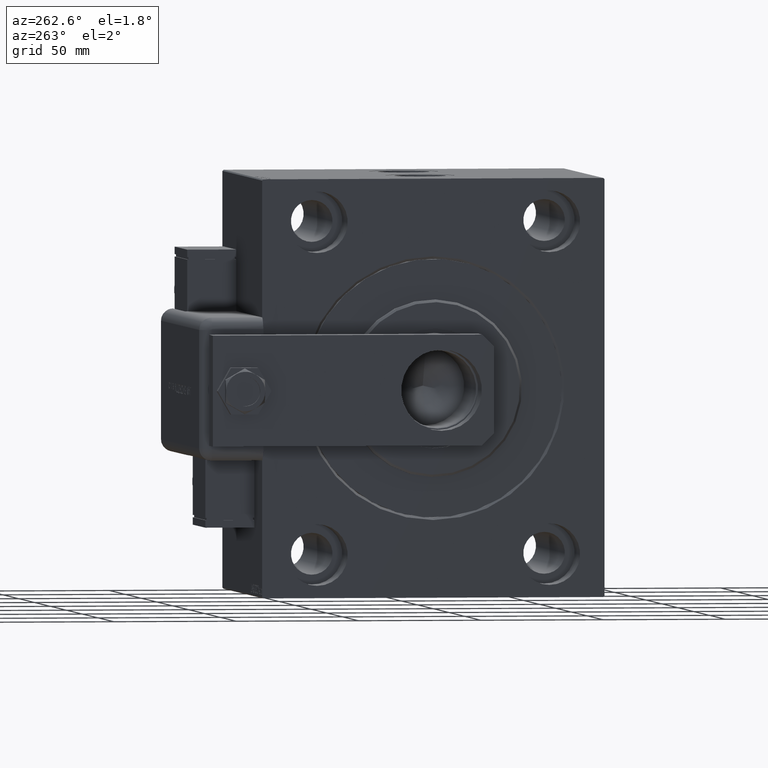
[diagram: clean part render]
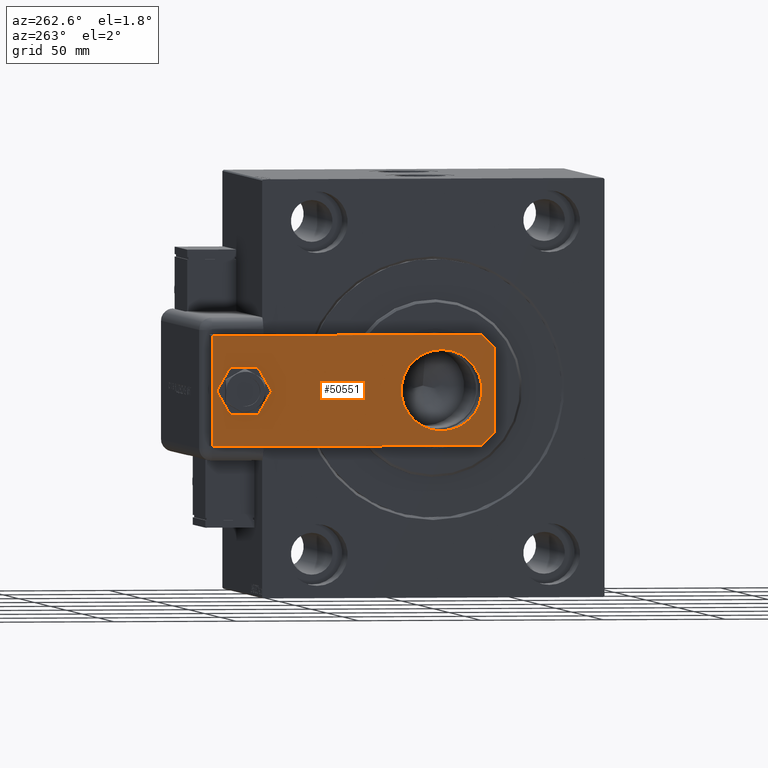
[diagram: same view with one face highlighted and labeled with its STEP entity id]
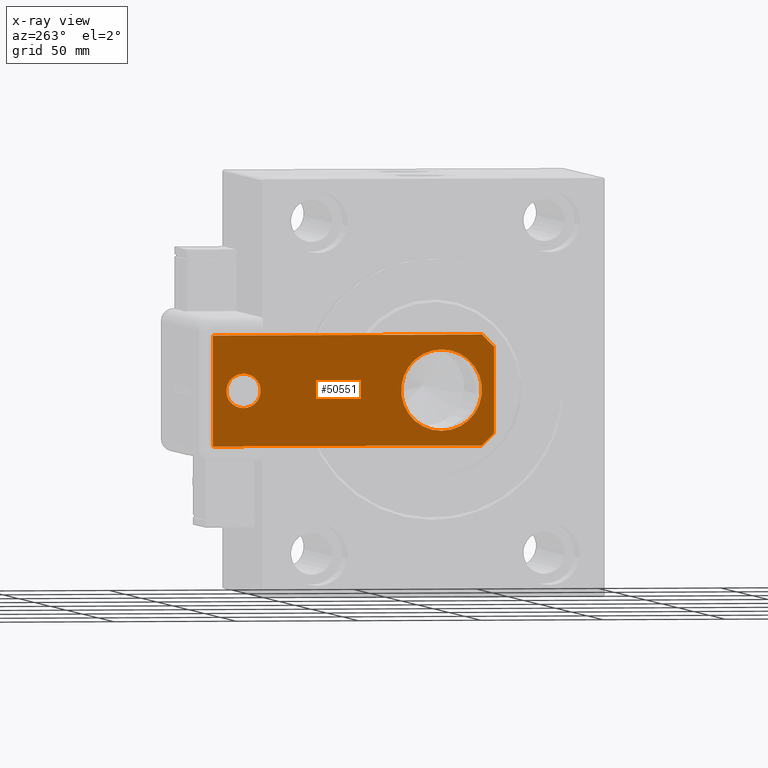
[diagram: x-ray of the same camera — body ghosted, the highlighted face saturated]
A machine part, auxiliary view. The second image highlights one B-rep face of the part: STEP entity #50551.
The next image is the same camera in x-ray: the body ghosted, the highlighted face saturated — about 0% of this face is hidden behind the body in this view.
In plain terms, the highlighted planar face has unit normal (1, 0, -0).
Its self-contained STEP definition (entity closure, byte-faithful):
#859 = ORIENTED_EDGE ( 'NONE', *, *, #31817, .T. ) ;
#1249 = ORIENTED_EDGE ( 'NONE', *, *, #27584, .T. ) ;
#2743 = CARTESIAN_POINT ( 'NONE',  ( -17.50000000000000355, 0.000000000000000000, 0.000000000000000000 ) ) ;
#3403 = PLANE ( 'NONE',  #57188 ) ;
#3521 = EDGE_CURVE ( 'NONE', #38051, #4966, #33378, .T. ) ;
#3690 = CARTESIAN_POINT ( 'NONE',  ( 0.000000000000000000, 0.000000000000000000, 0.000000000000000000 ) ) ;
#4018 = DIRECTION ( 'NONE',  ( 0.000000000000000000, 0.000000000000000000, 1.000000000000000000 ) ) ;
#4966 = VERTEX_POINT ( 'NONE', #41723 ) ;
#5538 = LINE ( 'NONE', #39070, #42897 ) ;
#7255 = DIRECTION ( 'NONE',  ( 0.000000000000000000, 0.000000000000000000, 1.000000000000000000 ) ) ;
#7484 = CIRCLE ( 'NONE', #56735, 16.50000000000000000 ) ;
#9694 = DIRECTION ( 'NONE',  ( -9.050731179009427836E-17, 1.000000000000000000, 0.000000000000000000 ) ) ;
#11014 = DIRECTION ( 'NONE',  ( -0.7071067811865493491, -0.7071067811865455743, -0.000000000000000000 ) ) ;
#11353 = DIRECTION ( 'NONE',  ( 1.000000000000000000, 0.000000000000000000, 0.000000000000000000 ) ) ;
#11897 = AXIS2_PLACEMENT_3D ( 'NONE', #43694, #53354, #11353 ) ;
#11935 = CARTESIAN_POINT ( 'NONE',  ( 1.963948872468190046E-17, 102.5000000000000142, 0.000000000000000000 ) ) ;
#13637 = EDGE_CURVE ( 'NONE', #19633, #4966, #39111, .T. ) ;
#14400 = CARTESIAN_POINT ( 'NONE',  ( 22.50000000000000000, 115.0000000000000000, 0.000000000000000000 ) ) ;
#14606 = CARTESIAN_POINT ( 'NONE',  ( -22.50000000000000355, 115.0000000000000000, 0.000000000000000000 ) ) ;
#15917 = VERTEX_POINT ( 'NONE', #43427 ) ;
#15988 = ORIENTED_EDGE ( 'NONE', *, *, #34315, .T. ) ;
#16541 = VERTEX_POINT ( 'NONE', #32700 ) ;
#16637 = ORIENTED_EDGE ( 'NONE', *, *, #50910, .F. ) ;
#17232 = ORIENTED_EDGE ( 'NONE', *, *, #56568, .F. ) ;
#17353 = CARTESIAN_POINT ( 'NONE',  ( 0.000000000000000000, 21.50000000000000355, 0.000000000000000000 ) ) ;
#18055 = ORIENTED_EDGE ( 'NONE', *, *, #3521, .T. ) ;
#19342 = CARTESIAN_POINT ( 'NONE',  ( -16.50000000000000000, 21.50000000000000355, 0.000000000000000000 ) ) ;
#19633 = VERTEX_POINT ( 'NONE', #2743 ) ;
#19752 = DIRECTION ( 'NONE',  ( -6.033820786006285224E-17, -1.000000000000000000, 0.000000000000000000 ) ) ;
#20311 = DIRECTION ( 'NONE',  ( -1.000000000000000000, 0.000000000000000000, 0.000000000000000000 ) ) ;
#21942 = AXIS2_PLACEMENT_3D ( 'NONE', #17353, #4018, #22473 ) ;
#22473 = DIRECTION ( 'NONE',  ( 1.000000000000000000, 0.000000000000000000, 0.000000000000000000 ) ) ;
#24458 = VECTOR ( 'NONE', #35151, 1000.000000000000000 ) ;
#25556 = CIRCLE ( 'NONE', #11897, 7.000000000000000000 ) ;
#25701 = DIRECTION ( 'NONE',  ( 1.000000000000000000, 0.000000000000000000, 0.000000000000000000 ) ) ;
#25802 = FACE_OUTER_BOUND ( 'NONE', #56372, .T. ) ;
#25844 = DIRECTION ( 'NONE',  ( 0.000000000000000000, 0.000000000000000000, 1.000000000000000000 ) ) ;
#26673 = ORIENTED_EDGE ( 'NONE', *, *, #13637, .F. ) ;
#26982 = FACE_BOUND ( 'NONE', #34683, .T. ) ;
#27584 = EDGE_CURVE ( 'NONE', #42028, #51134, #48033, .T. ) ;
#30026 = CARTESIAN_POINT ( 'NONE',  ( -22.50000000000001066, 0.000000000000000000, 0.000000000000000000 ) ) ;
#30768 = CARTESIAN_POINT ( 'NONE',  ( 7.000000000000000000, 102.5000000000000142, 0.000000000000000000 ) ) ;
#31042 = LINE ( 'NONE', #32230, #34767 ) ;
#31501 = DIRECTION ( 'NONE',  ( -0.000000000000000000, 0.000000000000000000, 1.000000000000000000 ) ) ;
#31774 = ORIENTED_EDGE ( 'NONE', *, *, #42653, .F. ) ;
#31817 = EDGE_CURVE ( 'NONE', #51134, #42028, #7484, .T. ) ;
#32006 = VERTEX_POINT ( 'NONE', #30768 ) ;
#32078 = VECTOR ( 'NONE', #20311, 1000.000000000000000 ) ;
#32230 = CARTESIAN_POINT ( 'NONE',  ( -17.50000000000000355, 0.000000000000000000, 0.000000000000000000 ) ) ;
#32700 = CARTESIAN_POINT ( 'NONE',  ( -7.000000000000000000, 102.5000000000000142, 0.000000000000000000 ) ) ;
#33378 = LINE ( 'NONE', #42447, #45646 ) ;
#33558 = LINE ( 'NONE', #51113, #35632 ) ;
#34315 = EDGE_CURVE ( 'NONE', #16541, #32006, #34612, .T. ) ;
#34612 = CIRCLE ( 'NONE', #42345, 7.000000000000000000 ) ;
#34683 = EDGE_LOOP ( 'NONE', ( #15988, #43782 ) ) ;
#34767 = VECTOR ( 'NONE', #55229, 1000.000000000000114 ) ;
#35151 = DIRECTION ( 'NONE',  ( 1.000000000000000000, 0.000000000000000000, 0.000000000000000000 ) ) ;
#35632 = VECTOR ( 'NONE', #9694, 1000.000000000000000 ) ;
#38051 = VERTEX_POINT ( 'NONE', #55724 ) ;
#39070 = CARTESIAN_POINT ( 'NONE',  ( -22.50000000000000355, 115.0000000000000000, 0.000000000000000000 ) ) ;
#39111 = LINE ( 'NONE', #30026, #24458 ) ;
#39298 = CARTESIAN_POINT ( 'NONE',  ( 0.000000000000000000, 21.50000000000000355, 0.000000000000000000 ) ) ;
#39674 = CARTESIAN_POINT ( 'NONE',  ( 16.50000000000000000, 21.50000000000000711, 0.000000000000000000 ) ) ;
#41518 = EDGE_CURVE ( 'NONE', #19633, #15917, #31042, .T. ) ;
#41723 = CARTESIAN_POINT ( 'NONE',  ( 17.49999999999997868, 0.000000000000000000, 0.000000000000000000 ) ) ;
#42028 = VERTEX_POINT ( 'NONE', #39674 ) ;
#42345 = AXIS2_PLACEMENT_3D ( 'NONE', #11935, #25844, #44276 ) ;
#42447 = CARTESIAN_POINT ( 'NONE',  ( 22.50000000000001066, 5.000000000000004441, 0.000000000000000000 ) ) ;
#42653 = EDGE_CURVE ( 'NONE', #38051, #43214, #33558, .T. ) ;
#42897 = VECTOR ( 'NONE', #19752, 1000.000000000000000 ) ;
#42985 = LINE ( 'NONE', #52655, #32078 ) ;
#43214 = VERTEX_POINT ( 'NONE', #14400 ) ;
#43427 = CARTESIAN_POINT ( 'NONE',  ( -22.50000000000001066, 5.000000000000031974, 0.000000000000000000 ) ) ;
#43694 = CARTESIAN_POINT ( 'NONE',  ( 1.963948872468190046E-17, 102.5000000000000142, 0.000000000000000000 ) ) ;
#43782 = ORIENTED_EDGE ( 'NONE', *, *, #57183, .T. ) ;
#44276 = DIRECTION ( 'NONE',  ( 1.000000000000000000, 0.000000000000000000, 0.000000000000000000 ) ) ;
#45646 = VECTOR ( 'NONE', #11014, 1000.000000000000114 ) ;
#48033 = CIRCLE ( 'NONE', #21942, 16.50000000000000000 ) ;
#49665 = FACE_BOUND ( 'NONE', #56488, .T. ) ;
#50551 = ADVANCED_FACE ( 'NONE', ( #25802, #26982, #49665 ), #3403, .F. ) ;
#50910 = EDGE_CURVE ( 'NONE', #43214, #52927, #42985, .T. ) ;
#51113 = CARTESIAN_POINT ( 'NONE',  ( 22.50000000000001066, 0.000000000000000000, 0.000000000000000000 ) ) ;
#51134 = VERTEX_POINT ( 'NONE', #19342 ) ;
#52031 = ORIENTED_EDGE ( 'NONE', *, *, #41518, .T. ) ;
#52655 = CARTESIAN_POINT ( 'NONE',  ( 22.50000000000000000, 115.0000000000000000, 0.000000000000000000 ) ) ;
#52927 = VERTEX_POINT ( 'NONE', #14606 ) ;
#53354 = DIRECTION ( 'NONE',  ( 0.000000000000000000, 0.000000000000000000, 1.000000000000000000 ) ) ;
#55229 = DIRECTION ( 'NONE',  ( -0.7071067811865455743, 0.7071067811865493491, -0.000000000000000000 ) ) ;
#55724 = CARTESIAN_POINT ( 'NONE',  ( 22.50000000000001066, 5.000000000000003553, 0.000000000000000000 ) ) ;
#56372 = EDGE_LOOP ( 'NONE', ( #26673, #52031, #17232, #16637, #31774, #18055 ) ) ;
#56488 = EDGE_LOOP ( 'NONE', ( #859, #1249 ) ) ;
#56568 = EDGE_CURVE ( 'NONE', #52927, #15917, #5538, .T. ) ;
#56735 = AXIS2_PLACEMENT_3D ( 'NONE', #39298, #7255, #25701 ) ;
#57183 = EDGE_CURVE ( 'NONE', #32006, #16541, #25556, .T. ) ;
#57188 = AXIS2_PLACEMENT_3D ( 'NONE', #3690, #31501, #58443 ) ;
#58443 = DIRECTION ( 'NONE',  ( 1.000000000000000000, 0.000000000000000000, 0.000000000000000000 ) ) ;